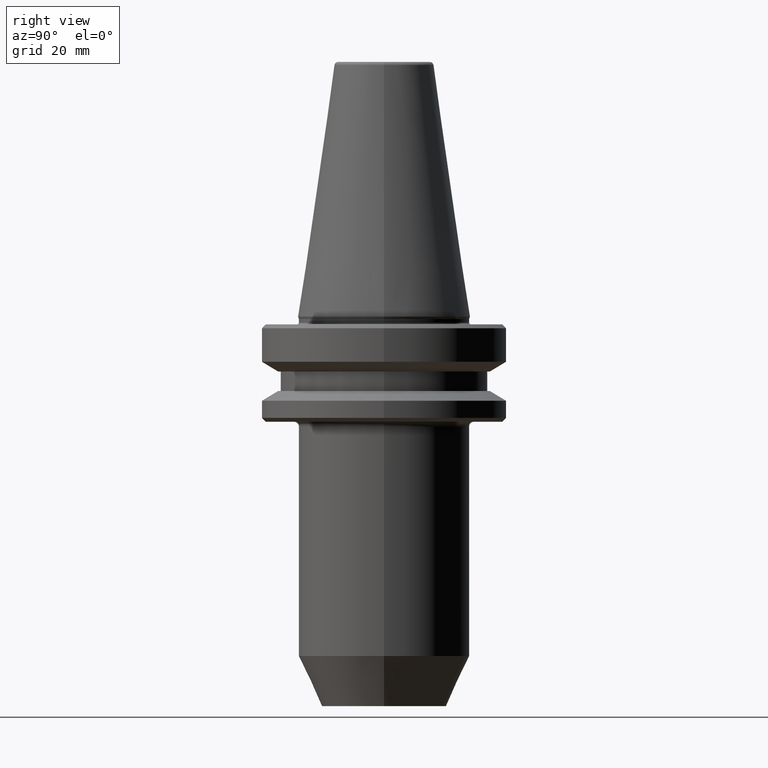
[diagram: clean part render]
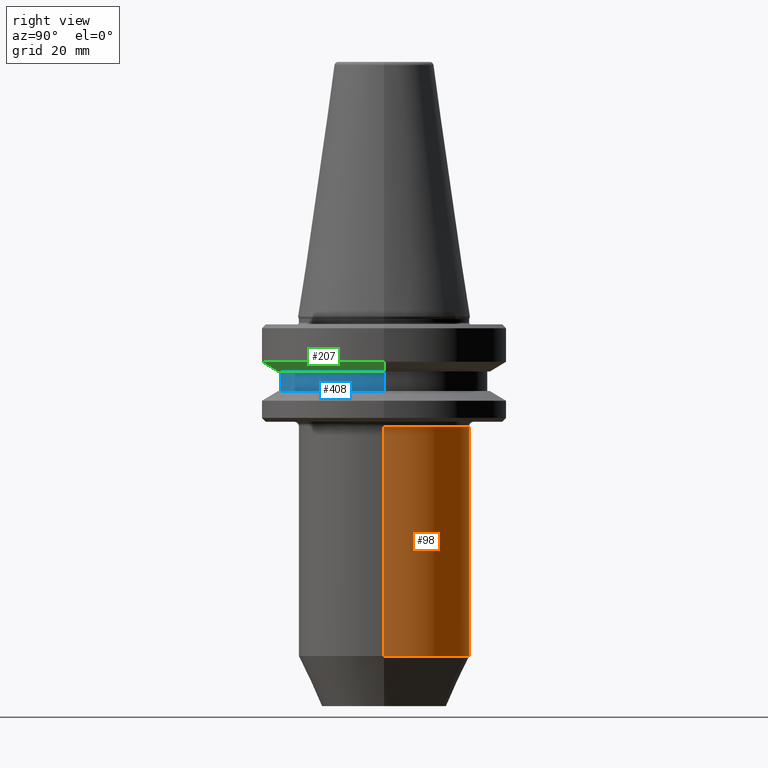
[diagram: same view with three faces highlighted in distinct colors, each labeled with its STEP entity id]
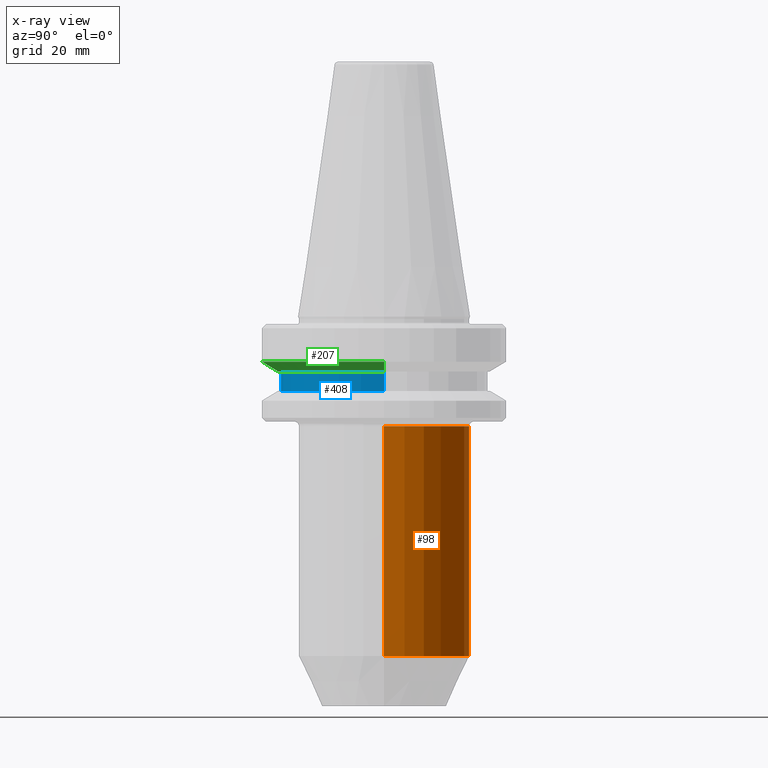
[diagram: x-ray of the same camera — body ghosted, the three highlighted faces saturated]
A machine part, right view with three faces highlighted in distinct colors.
The next image is the same camera in x-ray (body ghosted, the three faces saturated) — at least one of them is partly hidden behind the body in this view.
Their STEP definitions:

[orange] entity #98 — the highlighted cylindrical surface (partial cylindrical patch) has radius 22 mm, axis along (-0, -0, 1).
#22 = CARTESIAN_POINT ( 'NONE',  ( -22.00000000000000000, 2.694222958124176800E-015, -27.51128678844369400 ) ) ;
#34 = CARTESIAN_POINT ( 'NONE',  ( 22.00000000000000000, 0.0000000000000000000, 82.74845858742440900 ) ) ;
#51 = VECTOR ( 'NONE', #124, 1000.000000000000000 ) ;
#70 = CARTESIAN_POINT ( 'NONE',  ( 0.0000000000000000000, 0.0000000000000000000, -27.51128678844369400 ) ) ;
#98 = ADVANCED_FACE ( 'NONE', ( #463 ), #195, .T. ) ;
#124 = DIRECTION ( 'NONE',  ( -0.0000000000000000000, -0.0000000000000000000, 1.000000000000000000 ) ) ;
#161 = VERTEX_POINT ( 'NONE', #22 ) ;
#168 = DIRECTION ( 'NONE',  ( 1.000000000000000000, 0.0000000000000000000, 0.0000000000000000000 ) ) ;
#193 = CIRCLE ( 'NONE', #362, 22.00000000000000000 ) ;
#195 = CYLINDRICAL_SURFACE ( 'NONE', #673, 22.00000000000000000 ) ;
#241 = VERTEX_POINT ( 'NONE', #442 ) ;
#250 = DIRECTION ( 'NONE',  ( 1.000000000000000000, 0.0000000000000000000, 0.0000000000000000000 ) ) ;
#297 = EDGE_CURVE ( 'NONE', #241, #161, #531, .T. ) ;
#303 = CARTESIAN_POINT ( 'NONE',  ( 0.0000000000000000000, 0.0000000000000000000, -86.44424526528283100 ) ) ;
#310 = EDGE_LOOP ( 'NONE', ( #605, #441, #606, #984 ) ) ;
#313 = CARTESIAN_POINT ( 'NONE',  ( 22.00000000000000000, 0.0000000000000000000, -27.51128678844369400 ) ) ;
#333 = DIRECTION ( 'NONE',  ( -0.0000000000000000000, -0.0000000000000000000, 1.000000000000000000 ) ) ;
#344 = AXIS2_PLACEMENT_3D ( 'NONE', #70, #657, #168 ) ;
#362 = AXIS2_PLACEMENT_3D ( 'NONE', #303, #333, #961 ) ;
#414 = VERTEX_POINT ( 'NONE', #760 ) ;
#434 = CARTESIAN_POINT ( 'NONE',  ( -22.00000000000000000, 2.694222958124176800E-015, 82.74845858742440900 ) ) ;
#441 = ORIENTED_EDGE ( 'NONE', *, *, #297, .T. ) ;
#442 = CARTESIAN_POINT ( 'NONE',  ( -22.00000000000000000, 2.694222958124176800E-015, -86.44424526528283100 ) ) ;
#463 = FACE_OUTER_BOUND ( 'NONE', #310, .T. ) ;
#531 = LINE ( 'NONE', #434, #51 ) ;
#573 = LINE ( 'NONE', #34, #794 ) ;
#594 = VERTEX_POINT ( 'NONE', #313 ) ;
#605 = ORIENTED_EDGE ( 'NONE', *, *, #699, .T. ) ;
#606 = ORIENTED_EDGE ( 'NONE', *, *, #725, .F. ) ;
#610 = DIRECTION ( 'NONE',  ( -0.0000000000000000000, -0.0000000000000000000, 1.000000000000000000 ) ) ;
#657 = DIRECTION ( 'NONE',  ( -0.0000000000000000000, -0.0000000000000000000, 1.000000000000000000 ) ) ;
#673 = AXIS2_PLACEMENT_3D ( 'NONE', #990, #949, #250 ) ;
#699 = EDGE_CURVE ( 'NONE', #414, #241, #193, .T. ) ;
#721 = EDGE_CURVE ( 'NONE', #414, #594, #573, .T. ) ;
#725 = EDGE_CURVE ( 'NONE', #594, #161, #986, .T. ) ;
#760 = CARTESIAN_POINT ( 'NONE',  ( 22.00000000000000000, 0.0000000000000000000, -86.44424526528283100 ) ) ;
#794 = VECTOR ( 'NONE', #610, 1000.000000000000000 ) ;
#949 = DIRECTION ( 'NONE',  ( -0.0000000000000000000, -0.0000000000000000000, 1.000000000000000000 ) ) ;
#961 = DIRECTION ( 'NONE',  ( 1.000000000000000000, 0.0000000000000000000, 0.0000000000000000000 ) ) ;
#984 = ORIENTED_EDGE ( 'NONE', *, *, #721, .F. ) ;
#986 = CIRCLE ( 'NONE', #344, 22.00000000000000000 ) ;
#990 = CARTESIAN_POINT ( 'NONE',  ( 0.0000000000000000000, 0.0000000000000000000, 82.74845858742440900 ) ) ;

[blue] entity #408 — the highlighted cylindrical surface (partial cylindrical patch) has radius 26.5 mm, axis along (-0, -0, 1).
#127 = AXIS2_PLACEMENT_3D ( 'NONE', #446, #1047, #914 ) ;
#132 = CARTESIAN_POINT ( 'NONE',  ( -26.50000000000007800, 3.245314017740495600E-015, 82.74845858742440900 ) ) ;
#142 = AXIS2_PLACEMENT_3D ( 'NONE', #693, #708, #214 ) ;
#185 = LINE ( 'NONE', #361, #1000 ) ;
#214 = DIRECTION ( 'NONE',  ( 1.000000000000000000, 0.0000000000000000000, 0.0000000000000000000 ) ) ;
#262 = ORIENTED_EDGE ( 'NONE', *, *, #497, .T. ) ;
#268 = VERTEX_POINT ( 'NONE', #292 ) ;
#292 = CARTESIAN_POINT ( 'NONE',  ( -26.50000000000007800, 3.245314017740495600E-015, -13.41128678834002700 ) ) ;
#337 = AXIS2_PLACEMENT_3D ( 'NONE', #823, #340, #901 ) ;
#340 = DIRECTION ( 'NONE',  ( -0.0000000000000000000, -0.0000000000000000000, 1.000000000000000000 ) ) ;
#361 = CARTESIAN_POINT ( 'NONE',  ( 26.50000000000007800, 0.0000000000000000000, 82.74845858742440900 ) ) ;
#377 = VERTEX_POINT ( 'NONE', #561 ) ;
#400 = VERTEX_POINT ( 'NONE', #514 ) ;
#408 = ADVANCED_FACE ( 'NONE', ( #670 ), #615, .T. ) ;
#428 = EDGE_CURVE ( 'NONE', #804, #377, #185, .T. ) ;
#429 = CIRCLE ( 'NONE', #337, 26.50000000000007800 ) ;
#446 = CARTESIAN_POINT ( 'NONE',  ( 0.0000000000000000000, 0.0000000000000000000, 82.74845858742440900 ) ) ;
#497 = EDGE_CURVE ( 'NONE', #400, #804, #763, .T. ) ;
#514 = CARTESIAN_POINT ( 'NONE',  ( -26.50000000000007800, 3.245314017740495600E-015, -18.41128678844344800 ) ) ;
#561 = CARTESIAN_POINT ( 'NONE',  ( 26.50000000000007800, 0.0000000000000000000, -13.41128678834002700 ) ) ;
#582 = LINE ( 'NONE', #132, #960 ) ;
#615 = CYLINDRICAL_SURFACE ( 'NONE', #127, 26.50000000000007800 ) ;
#670 = FACE_OUTER_BOUND ( 'NONE', #999, .T. ) ;
#693 = CARTESIAN_POINT ( 'NONE',  ( 0.0000000000000000000, 0.0000000000000000000, -18.41128678844344800 ) ) ;
#703 = ORIENTED_EDGE ( 'NONE', *, *, #896, .F. ) ;
#708 = DIRECTION ( 'NONE',  ( -0.0000000000000000000, -0.0000000000000000000, 1.000000000000000000 ) ) ;
#733 = EDGE_CURVE ( 'NONE', #268, #377, #429, .T. ) ;
#735 = ORIENTED_EDGE ( 'NONE', *, *, #428, .T. ) ;
#763 = CIRCLE ( 'NONE', #142, 26.50000000000007800 ) ;
#791 = ORIENTED_EDGE ( 'NONE', *, *, #733, .F. ) ;
#804 = VERTEX_POINT ( 'NONE', #844 ) ;
#823 = CARTESIAN_POINT ( 'NONE',  ( 0.0000000000000000000, 0.0000000000000000000, -13.41128678834002700 ) ) ;
#844 = CARTESIAN_POINT ( 'NONE',  ( 26.50000000000007800, 0.0000000000000000000, -18.41128678844344800 ) ) ;
#867 = DIRECTION ( 'NONE',  ( -0.0000000000000000000, -0.0000000000000000000, 1.000000000000000000 ) ) ;
#896 = EDGE_CURVE ( 'NONE', #400, #268, #582, .T. ) ;
#901 = DIRECTION ( 'NONE',  ( 1.000000000000000000, 0.0000000000000000000, 0.0000000000000000000 ) ) ;
#914 = DIRECTION ( 'NONE',  ( 1.000000000000000000, 0.0000000000000000000, 0.0000000000000000000 ) ) ;
#924 = DIRECTION ( 'NONE',  ( -0.0000000000000000000, -0.0000000000000000000, 1.000000000000000000 ) ) ;
#960 = VECTOR ( 'NONE', #867, 1000.000000000000000 ) ;
#999 = EDGE_LOOP ( 'NONE', ( #703, #262, #735, #791 ) ) ;
#1000 = VECTOR ( 'NONE', #924, 1000.000000000000000 ) ;
#1047 = DIRECTION ( 'NONE',  ( -0.0000000000000000000, -0.0000000000000000000, 1.000000000000000000 ) ) ;

[green] entity #207 — the highlighted conical surface has half-angle 60 deg.
#15 = DIRECTION ( 'NONE',  ( -0.0000000000000000000, -0.0000000000000000000, 1.000000000000000000 ) ) ;
#65 = CARTESIAN_POINT ( 'NONE',  ( 0.0000000000000000000, 0.0000000000000000000, -10.91114478202370800 ) ) ;
#66 = AXIS2_PLACEMENT_3D ( 'NONE', #65, #964, #244 ) ;
#96 = EDGE_LOOP ( 'NONE', ( #911, #767, #842, #118 ) ) ;
#105 = FACE_OUTER_BOUND ( 'NONE', #96, .T. ) ;
#118 = ORIENTED_EDGE ( 'NONE', *, *, #213, .F. ) ;
#145 = CARTESIAN_POINT ( 'NONE',  ( 31.49999999999986100, 0.0000000000000000000, -10.91114478202370800 ) ) ;
#207 = ADVANCED_FACE ( 'NONE', ( #105 ), #727, .T. ) ;
#213 = EDGE_CURVE ( 'NONE', #718, #935, #931, .T. ) ;
#226 = AXIS2_PLACEMENT_3D ( 'NONE', #529, #15, #603 ) ;
#244 = DIRECTION ( 'NONE',  ( 1.000000000000000000, 0.0000000000000000000, 0.0000000000000000000 ) ) ;
#312 = LINE ( 'NONE', #917, #726 ) ;
#321 = VERTEX_POINT ( 'NONE', #506 ) ;
#350 = VECTOR ( 'NONE', #864, 1000.000000000000100 ) ;
#448 = VERTEX_POINT ( 'NONE', #1053 ) ;
#449 = DIRECTION ( 'NONE',  ( -0.8660254037844398200, 1.060575238724908400E-016, 0.4999999999999977200 ) ) ;
#464 = CARTESIAN_POINT ( 'NONE',  ( 0.0000000000000000000, 0.0000000000000000000, -13.41128678834002700 ) ) ;
#466 = CARTESIAN_POINT ( 'NONE',  ( -31.49999999999986100, 3.857637417314145300E-015, -10.91114478202370800 ) ) ;
#506 = CARTESIAN_POINT ( 'NONE',  ( -27.16962701892278200, 3.592478546794634700E-015, -13.41128678834002700 ) ) ;
#529 = CARTESIAN_POINT ( 'NONE',  ( 0.0000000000000000000, 0.0000000000000000000, -13.41128678834002700 ) ) ;
#603 = DIRECTION ( 'NONE',  ( 1.000000000000000000, 0.0000000000000000000, 0.0000000000000000000 ) ) ;
#718 = VERTEX_POINT ( 'NONE', #466 ) ;
#726 = VECTOR ( 'NONE', #449, 1000.000000000000100 ) ;
#727 = CONICAL_SURFACE ( 'NONE', #951, 27.16962701892278200, 1.047197551196600300 ) ;
#767 = ORIENTED_EDGE ( 'NONE', *, *, #778, .T. ) ;
#769 = EDGE_CURVE ( 'NONE', #321, #718, #312, .T. ) ;
#774 = DIRECTION ( 'NONE',  ( -0.0000000000000000000, -0.0000000000000000000, 1.000000000000000000 ) ) ;
#778 = EDGE_CURVE ( 'NONE', #321, #448, #930, .T. ) ;
#842 = ORIENTED_EDGE ( 'NONE', *, *, #893, .T. ) ;
#864 = DIRECTION ( 'NONE',  ( 0.8660254037844398200, 0.0000000000000000000, 0.4999999999999977200 ) ) ;
#893 = EDGE_CURVE ( 'NONE', #448, #935, #976, .T. ) ;
#911 = ORIENTED_EDGE ( 'NONE', *, *, #769, .F. ) ;
#917 = CARTESIAN_POINT ( 'NONE',  ( -27.16962701892278200, 3.327319676275122900E-015, -13.41128678834002700 ) ) ;
#925 = DIRECTION ( 'NONE',  ( 1.000000000000000000, 0.0000000000000000000, 0.0000000000000000000 ) ) ;
#930 = CIRCLE ( 'NONE', #226, 27.16962701892278200 ) ;
#931 = CIRCLE ( 'NONE', #66, 31.49999999999986100 ) ;
#935 = VERTEX_POINT ( 'NONE', #145 ) ;
#951 = AXIS2_PLACEMENT_3D ( 'NONE', #464, #774, #925 ) ;
#964 = DIRECTION ( 'NONE',  ( -0.0000000000000000000, -0.0000000000000000000, 1.000000000000000000 ) ) ;
#976 = LINE ( 'NONE', #1010, #350 ) ;
#1010 = CARTESIAN_POINT ( 'NONE',  ( 27.16962701892278200, 0.0000000000000000000, -13.41128678834002700 ) ) ;
#1053 = CARTESIAN_POINT ( 'NONE',  ( 27.16962701892278200, 0.0000000000000000000, -13.41128678834002700 ) ) ;